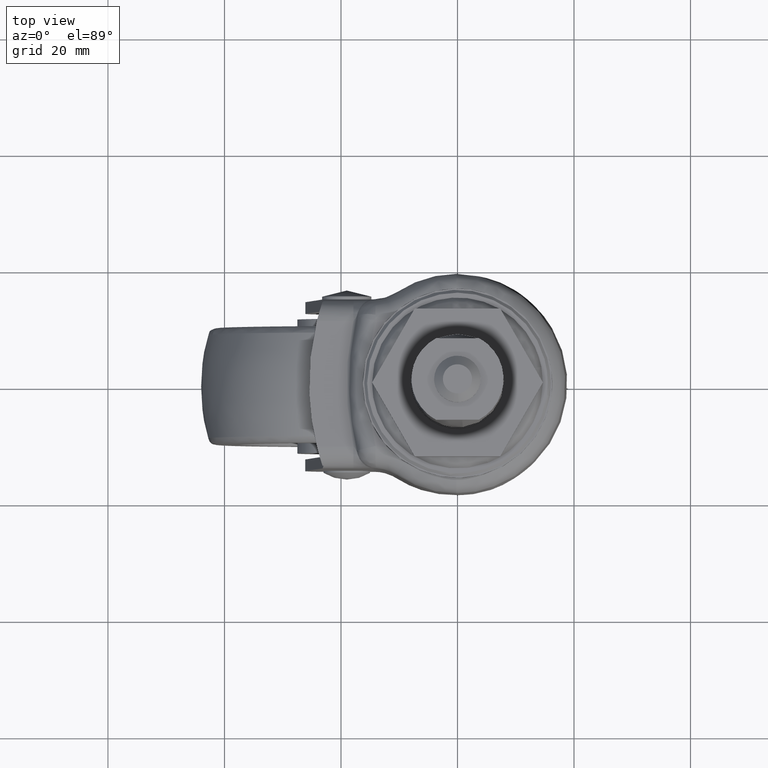
[diagram: clean part render]
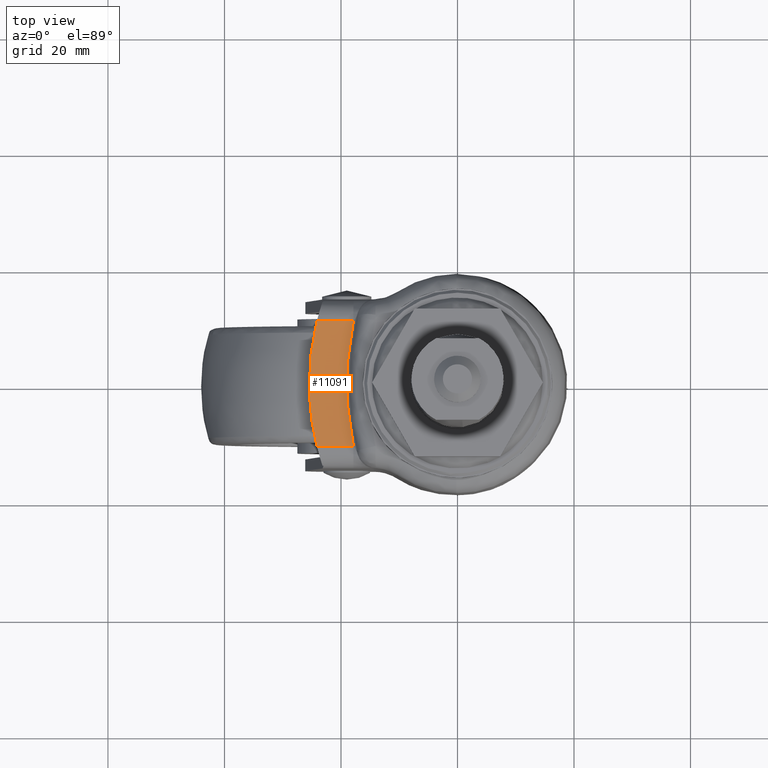
[diagram: same view with one face highlighted and labeled with its STEP entity id]
A machine part, top view. The second image highlights one B-rep face of the part: STEP entity #11091.
In plain terms, the highlighted face is a freeform B-spline surface patch.
Its self-contained STEP definition (entity closure, byte-faithful):
#8008=CARTESIAN_POINT('',(-17.872119485698001,10.750240000000000,-10.351519000000099));
#8009=VERTEX_POINT('',#8008);
#8145=CARTESIAN_POINT('',(-17.872119485698001,-10.750240000000000,-10.351519000000099));
#8146=VERTEX_POINT('',#8145);
#8220=CARTESIAN_POINT('',(-24.130494775985500,10.750240000000000,-10.351519000000099));
#8221=VERTEX_POINT('',#8220);
#8249=CARTESIAN_POINT('',(-17.872119485698001,10.750240000000000,-10.351519000000099));
#8250=CARTESIAN_POINT('',(-24.130494775985500,10.750240000000000,-10.351519000000099));
#8251=QUASI_UNIFORM_CURVE('',1,(#8249,#8250),.UNSPECIFIED.,.F.,.U.);
#8252=EDGE_CURVE('',#8009,#8221,#8251,.T.);
#8322=CARTESIAN_POINT('',(-24.130494775985500,-10.750240000000000,-10.351519000000099));
#8323=VERTEX_POINT('',#8322);
#8324=CARTESIAN_POINT('',(-24.130494775985500,-10.750240000000000,-10.351519000000099));
#8325=CARTESIAN_POINT('',(-17.872119485698001,-10.750240000000000,-10.351519000000099));
#8326=QUASI_UNIFORM_CURVE('',1,(#8324,#8325),.UNSPECIFIED.,.F.,.U.);
#8327=EDGE_CURVE('',#8323,#8146,#8326,.T.);
#8397=CARTESIAN_POINT('',(-17.872119485697969,-10.750240000000000,-10.351519000000099));
#8398=CARTESIAN_POINT('',(-20.213296383781259,0.0,-10.351519000000103));
#8399=CARTESIAN_POINT('',(-17.872119485697969,10.750239999999980,-10.351519000000099));
#8407=(BOUNDED_CURVE()B_SPLINE_CURVE(2,(#8397,#8398,#8399),.UNSPECIFIED.,.F.,.U.)CURVE()GEOMETRIC_REPRESENTATION_ITEM()QUASI_UNIFORM_CURVE()RATIONAL_B_SPLINE_CURVE((1.0,0.977097654573797,1.0))REPRESENTATION_ITEM(''));
#8408=EDGE_CURVE('',#8146,#8009,#8407,.T.);
#9669=CARTESIAN_POINT('',(-24.130494775985522,10.750240000000000,-10.351519000000099));
#9670=CARTESIAN_POINT('',(-26.804640632325075,1.387779E-014,-10.351519000000097));
#9671=CARTESIAN_POINT('',(-24.130494775985522,-10.750239999999980,-10.351519000000099));
#9679=(BOUNDED_CURVE()B_SPLINE_CURVE(2,(#9669,#9670,#9671),.UNSPECIFIED.,.F.,.U.)CURVE()GEOMETRIC_REPRESENTATION_ITEM()QUASI_UNIFORM_CURVE()RATIONAL_B_SPLINE_CURVE((1.0,0.970426747905613,1.0))REPRESENTATION_ITEM(''));
#9680=EDGE_CURVE('',#8221,#8323,#9679,.T.);
#11080=CARTESIAN_POINT('',(-25.825890470562321,-11.824189337990150,-10.351519000000099));
#11081=CARTESIAN_POINT('',(-17.493729597240868,-11.824189337990150,-10.351519000000099));
#11082=CARTESIAN_POINT('',(-25.825890470562321,11.824189530219421,-10.351519000000099));
#11083=CARTESIAN_POINT('',(-17.493729597240868,11.824189530219421,-10.351519000000099));
#11084=B_SPLINE_SURFACE_WITH_KNOTS('',1,1,((#11080,#11082),(#11081,#11083)),.UNSPECIFIED.,.F.,.F.,.U.,(2,2),(2,2),(0.0,8.332160873321456),(0.0,23.648378868209559),.UNSPECIFIED.);
#11085=ORIENTED_EDGE('',*,*,#8408,.T.);
#11086=ORIENTED_EDGE('',*,*,#8252,.T.);
#11087=ORIENTED_EDGE('',*,*,#9680,.T.);
#11088=ORIENTED_EDGE('',*,*,#8327,.T.);
#11089=EDGE_LOOP('',(#11085,#11086,#11087,#11088));
#11090=FACE_OUTER_BOUND('',#11089,.T.);
#11091=ADVANCED_FACE('',(#11090),#11084,.T.);